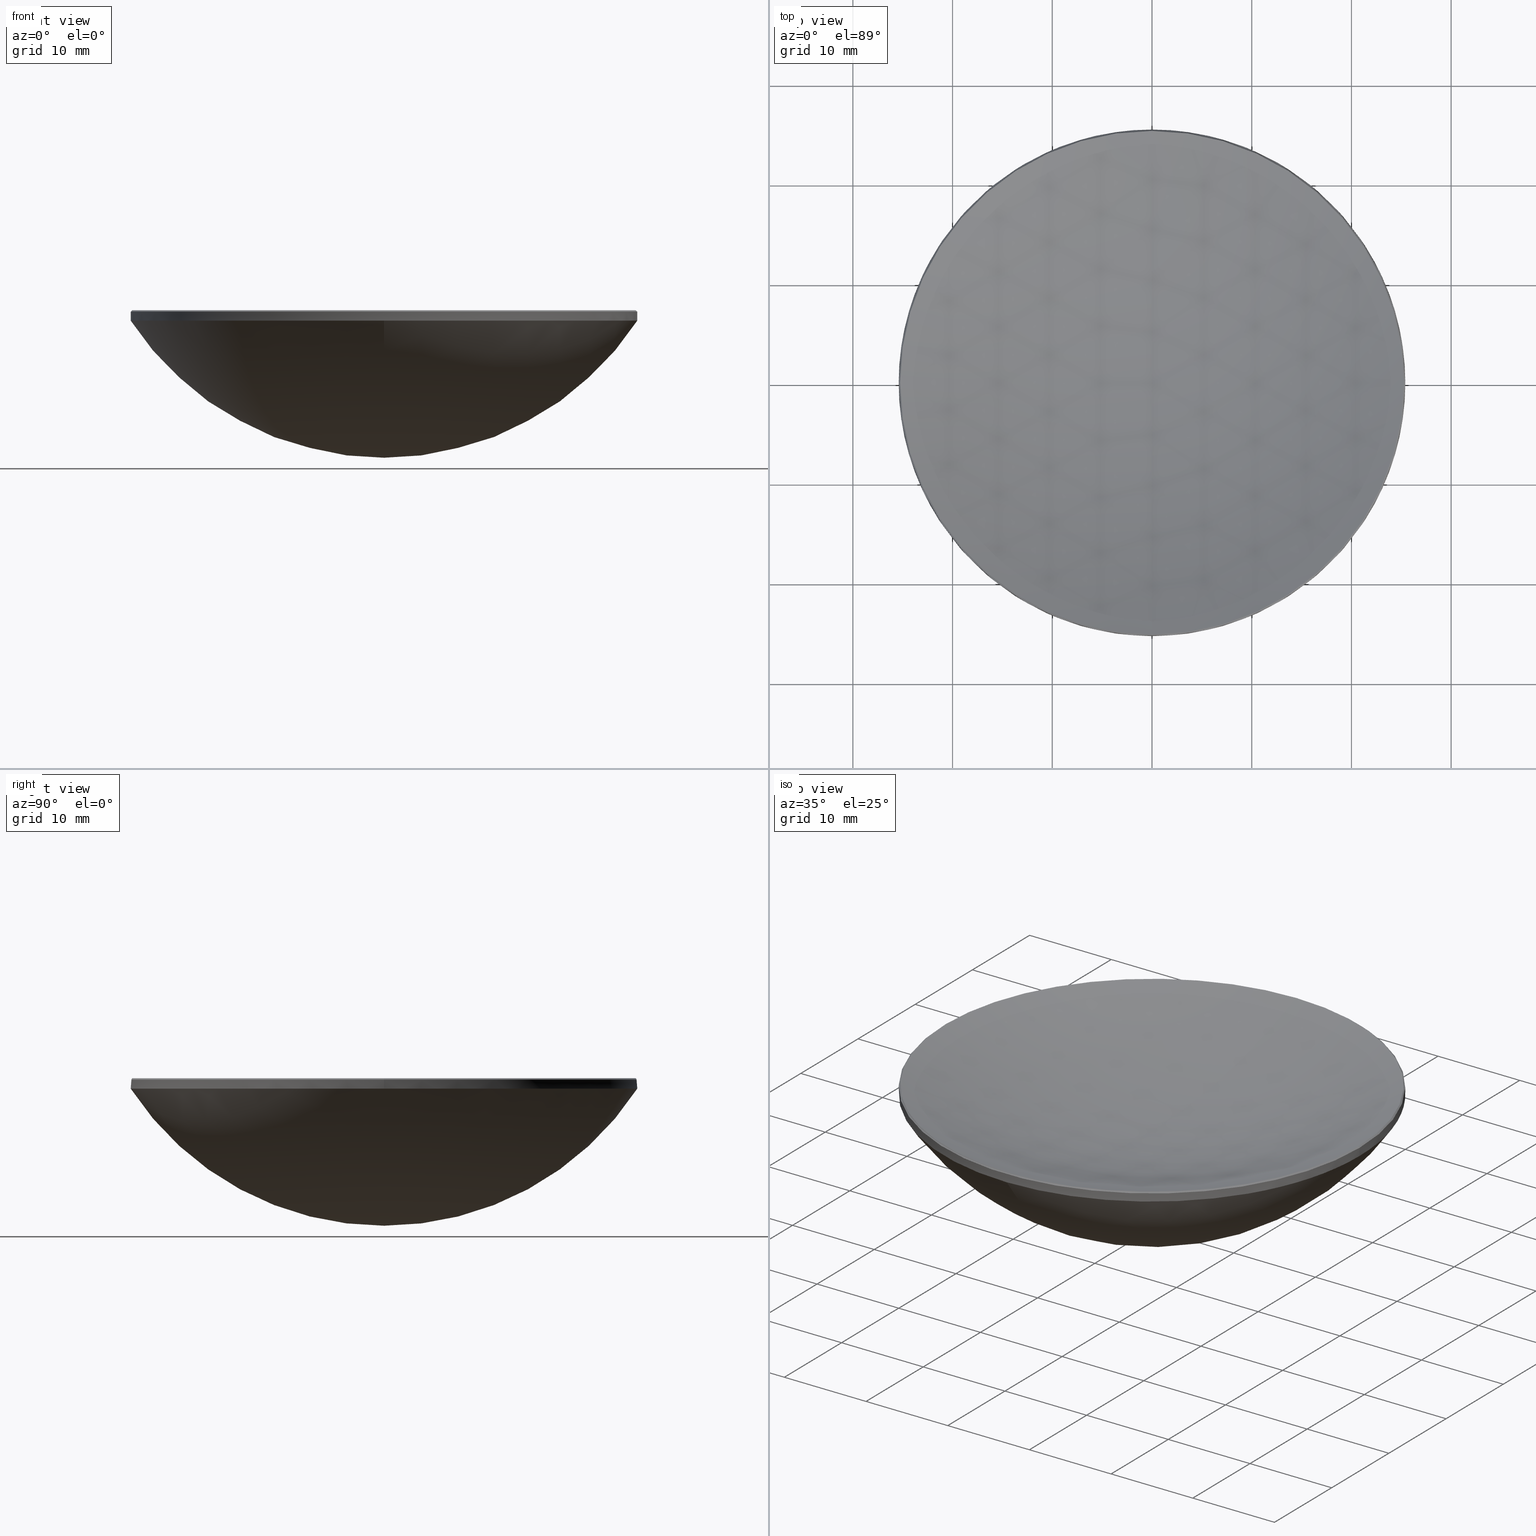
[diagram: canonical four-view strip — front | top / right | iso, engineering-drawing reading convention]
A machine part, canonical four-view strip (front | top / right | iso — engineering-drawing reading convention). The complete STEP part file that produces these views, byte-faithful:
ISO-10303-21;
HEADER;
FILE_DESCRIPTION (( 'STEP AP214' ),
    '1' );
FILE_NAME ('GLM1-050B-100-NIR.STEP',
    '2024-08-09T02:21:25',
    ( 'Windows User' ),
    ( 'P R C' ),
    'SwSTEP 2.0',
    'SolidWorks 2022',
    '' );
FILE_SCHEMA (( 'AUTOMOTIVE_DESIGN' ));
ENDSEC;

DATA;
#1 = ORIENTED_EDGE ( 'NONE', *, *, #128, .T. ) ;
#2 = LINE ( 'NONE', #49, #87 ) ;
#3 = AXIS2_PLACEMENT_3D ( 'NONE', #270, #124, #103 ) ;
#4 = DIRECTION ( 'NONE',  ( 0.000000000000000000, 0.000000000000000000, -1.000000000000000000 ) ) ;
#5 = ADVANCED_FACE ( 'NONE', ( #29 ), #241, .F. ) ;
#6 = DIRECTION ( 'NONE',  ( -1.000000000000000000, 0.000000000000000000, 0.000000000000000000 ) ) ;
#7 = ORIENTED_EDGE ( 'NONE', *, *, #107, .T. ) ;
#8 = ORIENTED_EDGE ( 'NONE', *, *, #32, .T. ) ;
#9 = DIRECTION ( 'NONE',  ( 1.000000000000000000, 0.000000000000000000, 0.000000000000000000 ) ) ;
#10 = SURFACE_STYLE_FILL_AREA ( #150 ) ;
#11 = SURFACE_STYLE_USAGE ( .BOTH. , #248 ) ;
#12 = DIRECTION ( 'NONE',  ( 1.000000000000000000, 0.000000000000000000, 0.000000000000000000 ) ) ;
#13 = ADVANCED_FACE ( 'NONE', ( #74 ), #77, .T. ) ;
#14 = DIRECTION ( 'NONE',  ( -0.000000000000000000, -0.000000000000000000, 1.000000000000000000 ) ) ;
#15 =( NAMED_UNIT ( * ) PLANE_ANGLE_UNIT ( ) SI_UNIT ( $, .RADIAN. ) );
#16 = DIRECTION ( 'NONE',  ( 1.000000000000000000, 0.000000000000000000, 0.000000000000000000 ) ) ;
#17 = PRESENTATION_STYLE_ASSIGNMENT (( #11 ) ) ;
#18 = CIRCLE ( 'NONE', #181, 25.39999999999999503 ) ;
#19 = ADVANCED_FACE ( 'NONE', ( #207 ), #240, .T. ) ;
#20 = AXIS2_PLACEMENT_3D ( 'NONE', #192, #58, #147 ) ;
#21 = VERTEX_POINT ( 'NONE', #142 ) ;
#22 = ORIENTED_EDGE ( 'NONE', *, *, #91, .F. ) ;
#23 = UNCERTAINTY_MEASURE_WITH_UNIT (LENGTH_MEASURE( 1.000000000000000082E-05 ), #170, 'distance_accuracy_value', 'NONE');
#24 = VERTEX_POINT ( 'NONE', #139 ) ;
#25 = DIRECTION ( 'NONE',  ( -0.000000000000000000, -0.000000000000000000, -1.000000000000000000 ) ) ;
#26 = FACE_OUTER_BOUND ( 'NONE', #280, .T. ) ;
#27 = CIRCLE ( 'NONE', #104, 25.39999999999999503 ) ;
#28 = COLOUR_RGB ( '',1.000000000000000000, 1.000000000000000000, 1.000000000000000000 ) ;
#29 = FACE_OUTER_BOUND ( 'NONE', #177, .T. ) ;
#30 = ORIENTED_EDGE ( 'NONE', *, *, #91, .T. ) ;
#31 = DIRECTION ( 'NONE',  ( 1.000000000000000000, 0.000000000000000000, 0.000000000000000000 ) ) ;
#32 = EDGE_CURVE ( 'NONE', #24, #68, #138, .T. ) ;
#33 = CARTESIAN_POINT ( 'NONE',  ( 25.25886542154867342, 3.093318868859334493E-15, 17.04113457845133439 ) ) ;
#34 =( LENGTH_UNIT ( ) NAMED_UNIT ( * ) SI_UNIT ( .MILLI., .METRE. ) );
#35 =( NAMED_UNIT ( * ) SI_UNIT ( $, .STERADIAN. ) SOLID_ANGLE_UNIT ( ) );
#36 = DIRECTION ( 'NONE',  ( -0.000000000000000000, -0.000000000000000000, -1.000000000000000000 ) ) ;
#37 = CARTESIAN_POINT ( 'NONE',  ( 25.25886542154865921, 3.101960869346804496E-15, 17.04113457845134860 ) ) ;
#38 = CARTESIAN_POINT ( 'NONE',  ( 0.000000000000000000, 0.000000000000000000, 17.04113457845134860 ) ) ;
#39 = MECHANICAL_DESIGN_GEOMETRIC_PRESENTATION_REPRESENTATION (  '', ( #56 ), #105 ) ;
#40 = ORIENTED_EDGE ( 'NONE', *, *, #71, .T. ) ;
#41 = EDGE_LOOP ( 'NONE', ( #110, #155, #257, #132 ) ) ;
#42 = ADVANCED_FACE ( 'NONE', ( #76 ), #75, .T. ) ;
#43 = STYLED_ITEM ( 'NONE', ( #216 ), #134 ) ;
#44 = AXIS2_PLACEMENT_3D ( 'NONE', #97, #271, #80 ) ;
#45 = ORIENTED_EDGE ( 'NONE', *, *, #261, .F. ) ;
#46 = DIRECTION ( 'NONE',  ( -0.000000000000000000, -0.000000000000000000, -1.000000000000000000 ) ) ;
#47 = EDGE_CURVE ( 'NONE', #236, #72, #2, .T. ) ;
#48 = SPHERICAL_SURFACE ( 'NONE', #254, 65.79999999999999716 ) ;
#49 = CARTESIAN_POINT ( 'NONE',  ( -25.25886542154867342, 0.000000000000000000, 17.04113457845133439 ) ) ;
#50 = CIRCLE ( 'NONE', #199, 65.79999999999999716 ) ;
#51 = APPLICATION_CONTEXT ( 'automotive_design' ) ;
#52 = CARTESIAN_POINT ( 'NONE',  ( -25.39999999999999858, 0.000000000000000000, 16.90000000000001279 ) ) ;
#53 = VERTEX_POINT ( 'NONE', #164 ) ;
#54 = DIRECTION ( 'NONE',  ( 0.000000000000000000, 0.000000000000000000, -1.000000000000000000 ) ) ;
#55 = CIRCLE ( 'NONE', #253, 25.39999999999999858 ) ;
#56 = STYLED_ITEM ( 'NONE', ( #17 ), #245 ) ;
#57 = DIRECTION ( 'NONE',  ( 0.7071067811865561215, 8.659560562355038861E-17, -0.7071067811865388020 ) ) ;
#58 = DIRECTION ( 'NONE',  ( 1.000000000000000000, -0.000000000000000000, 0.000000000000000000 ) ) ;
#59 = ADVANCED_FACE ( 'NONE', ( #26 ), #48, .F. ) ;
#60 = DIRECTION ( 'NONE',  ( 1.000000000000000000, 0.000000000000000000, 0.000000000000000000 ) ) ;
#61 = DIRECTION ( 'NONE',  ( 1.000000000000000000, 0.000000000000000000, 0.000000000000000000 ) ) ;
#62 =( NAMED_UNIT ( * ) PLANE_ANGLE_UNIT ( ) SI_UNIT ( $, .RADIAN. ) );
#63 = APPLICATION_PROTOCOL_DEFINITION ( 'draft international standard', 'automotive_design', 1998, #51 ) ;
#64 = ORIENTED_EDGE ( 'NONE', *, *, #189, .T. ) ;
#65 = CIRCLE ( 'NONE', #44, 30.33999999999999986 ) ;
#66 = ORIENTED_EDGE ( 'NONE', *, *, #47, .T. ) ;
#67 = ORIENTED_EDGE ( 'NONE', *, *, #201, .T. ) ;
#68 = VERTEX_POINT ( 'NONE', #88 ) ;
#69 = CIRCLE ( 'NONE', #221, 25.25886542154865921 ) ;
#70 = ORIENTED_EDGE ( 'NONE', *, *, #160, .T. ) ;
#71 = EDGE_CURVE ( 'NONE', #176, #264, #156, .T. ) ;
#72 = VERTEX_POINT ( 'NONE', #52 ) ;
#73 = CARTESIAN_POINT ( 'NONE',  ( 0.000000000000000000, 0.000000000000000000, 17.04113457845133439 ) ) ;
#74 = FACE_OUTER_BOUND ( 'NONE', #202, .T. ) ;
#75 = CONICAL_SURFACE ( 'NONE', #108, 25.25886542154867342, 0.7853981633974606025 ) ;
#76 = FACE_OUTER_BOUND ( 'NONE', #260, .T. ) ;
#77 = CYLINDRICAL_SURFACE ( 'NONE', #162, 25.39999999999999858 ) ;
#78 = FILL_AREA_STYLE_COLOUR ( '', #28 ) ;
#79 = PRODUCT_DEFINITION_FORMATION_WITH_SPECIFIED_SOURCE ( '�κ�', '', #127, .NOT_KNOWN. ) ;
#80 = DIRECTION ( 'NONE',  ( -1.224646799147353207E-16, -1.000000000000000000, 0.000000000000000000 ) ) ;
#81 = MECHANICAL_DESIGN_GEOMETRIC_PRESENTATION_REPRESENTATION (  '', ( #43 ), #238 ) ;
#82 = ORIENTED_EDGE ( 'NONE', *, *, #120, .F. ) ;
#83 = EDGE_LOOP ( 'NONE', ( #141, #30, #1, #70, #258 ) ) ;
#84 = PRESENTATION_LAYER_ASSIGNMENT (  '', '', ( #56 ) ) ;
#85 = ORIENTED_EDGE ( 'NONE', *, *, #115, .F. ) ;
#86 = ORIENTED_EDGE ( 'NONE', *, *, #115, .T. ) ;
#87 = VECTOR ( 'NONE', #223, 1000.000000000000114 ) ;
#88 = CARTESIAN_POINT ( 'NONE',  ( 25.39999999999999503, 3.110602869834276471E-15, 16.00000000000000000 ) ) ;
#89 = CARTESIAN_POINT ( 'NONE',  ( -25.39999999999999503, 0.000000000000000000, 16.00000000000000000 ) ) ;
#90 = DIRECTION ( 'NONE',  ( -1.000000000000000000, 0.000000000000000000, 0.000000000000000000 ) ) ;
#91 = EDGE_CURVE ( 'NONE', #24, #72, #112, .T. ) ;
#92 = DIRECTION ( 'NONE',  ( 0.000000000000000000, 1.000000000000000000, 0.000000000000000000 ) ) ;
#93 =( GEOMETRIC_REPRESENTATION_CONTEXT ( 3 ) GLOBAL_UNCERTAINTY_ASSIGNED_CONTEXT ( ( #23 ) ) GLOBAL_UNIT_ASSIGNED_CONTEXT ( ( #170, #99, #35 ) ) REPRESENTATION_CONTEXT ( 'NONE', 'WORKASPACE' ) );
#94 = VERTEX_POINT ( 'NONE', #89 ) ;
#95 = EDGE_CURVE ( 'NONE', #236, #176, #69, .T. ) ;
#96 = CARTESIAN_POINT ( 'NONE',  ( 0.000000000000000000, 0.000000000000000000, 77.79991762762121255 ) ) ;
#97 = CARTESIAN_POINT ( 'NONE',  ( 0.000000000000000000, 0.000000000000000000, 32.59384223138210501 ) ) ;
#98 = DIRECTION ( 'NONE',  ( -1.224646799147353207E-16, -1.000000000000000000, 0.000000000000000000 ) ) ;
#99 =( NAMED_UNIT ( * ) PLANE_ANGLE_UNIT ( ) SI_UNIT ( $, .RADIAN. ) );
#100 = CARTESIAN_POINT ( 'NONE',  ( 0.000000000000000000, 0.000000000000000000, 0.000000000000000000 ) ) ;
#101 = CARTESIAN_POINT ( 'NONE',  ( -25.39999999999999858, 0.000000000000000000, 20.00000000000000000 ) ) ;
#102 = UNCERTAINTY_MEASURE_WITH_UNIT (LENGTH_MEASURE( 1.000000000000000082E-05 ), #130, 'distance_accuracy_value', 'NONE');
#103 = DIRECTION ( 'NONE',  ( 0.000000000000000000, 1.000000000000000000, 0.000000000000000000 ) ) ;
#104 = AXIS2_PLACEMENT_3D ( 'NONE', #118, #186, #163 ) ;
#105 =( GEOMETRIC_REPRESENTATION_CONTEXT ( 3 ) GLOBAL_UNCERTAINTY_ASSIGNED_CONTEXT ( ( #102 ) ) GLOBAL_UNIT_ASSIGNED_CONTEXT ( ( #130, #15, #152 ) ) REPRESENTATION_CONTEXT ( 'NONE', 'WORKASPACE' ) );
#106 = ORIENTED_EDGE ( 'NONE', *, *, #95, .T. ) ;
#107 = EDGE_CURVE ( 'NONE', #21, #94, #27, .T. ) ;
#108 = AXIS2_PLACEMENT_3D ( 'NONE', #73, #4, #90 ) ;
#109 = VERTEX_POINT ( 'NONE', #210 ) ;
#110 = ORIENTED_EDGE ( 'NONE', *, *, #234, .F. ) ;
#111 = CARTESIAN_POINT ( 'NONE',  ( 0.000000000000000000, 0.000000000000000000, 77.79991762762121255 ) ) ;
#112 = CIRCLE ( 'NONE', #151, 25.39999999999999858 ) ;
#113 = ORIENTED_EDGE ( 'NONE', *, *, #189, .F. ) ;
#114 = DIRECTION ( 'NONE',  ( -0.000000000000000000, -0.000000000000000000, 1.000000000000000000 ) ) ;
#115 = EDGE_CURVE ( 'NONE', #72, #24, #55, .T. ) ;
#116 = DIRECTION ( 'NONE',  ( 1.000000000000000000, 0.000000000000000000, 0.000000000000000000 ) ) ;
#117 = AXIS2_PLACEMENT_3D ( 'NONE', #229, #217, #9 ) ;
#118 = CARTESIAN_POINT ( 'NONE',  ( 0.000000000000000000, 0.000000000000000000, 16.00000000000000000 ) ) ;
#119 = VECTOR ( 'NONE', #57, 1000.000000000000114 ) ;
#120 = EDGE_CURVE ( 'NONE', #264, #53, #144, .T. ) ;
#121 = FILL_AREA_STYLE_COLOUR ( '', #173 ) ;
#122 = DIRECTION ( 'NONE',  ( -1.000000000000000000, 0.000000000000000000, 0.000000000000000000 ) ) ;
#123 = CARTESIAN_POINT ( 'NONE',  ( 0.000000000000000000, 0.000000000000000000, 16.00000000000000000 ) ) ;
#124 = DIRECTION ( 'NONE',  ( -1.000000000000000000, 0.000000000000000000, 0.000000000000000000 ) ) ;
#125 = CARTESIAN_POINT ( 'NONE',  ( -3.110602869834276076E-15, -25.39999999999999503, 16.00000000000000000 ) ) ;
#126 = AXIS2_PLACEMENT_3D ( 'NONE', #123, #195, #12 ) ;
#127 = PRODUCT ( 'GLM1-050B-100-NIR', 'GLM1-050B-100-NIR', '', ( #279 ) ) ;
#128 = EDGE_CURVE ( 'NONE', #72, #94, #255, .T. ) ;
#129 = DIRECTION ( 'NONE',  ( 0.000000000000000000, 0.000000000000000000, -1.000000000000000000 ) ) ;
#130 =( LENGTH_UNIT ( ) NAMED_UNIT ( * ) SI_UNIT ( .MILLI., .METRE. ) );
#131 = AXIS2_PLACEMENT_3D ( 'NONE', #251, #54, #145 ) ;
#132 = ORIENTED_EDGE ( 'NONE', *, *, #107, .F. ) ;
#133 = ORIENTED_EDGE ( 'NONE', *, *, #95, .F. ) ;
#134 = MANIFOLD_SOLID_BREP ( '����1', #281 ) ;
#135 = AXIS2_PLACEMENT_3D ( 'NONE', #38, #276, #16 ) ;
#136 = ORIENTED_EDGE ( 'NONE', *, *, #227, .T. ) ;
#137 = EDGE_CURVE ( 'NONE', #53, #236, #262, .T. ) ;
#138 = LINE ( 'NONE', #143, #187 ) ;
#139 = CARTESIAN_POINT ( 'NONE',  ( 25.39999999999999858, 3.110602869834276865E-15, 16.90000000000001279 ) ) ;
#140 = PRODUCT_DEFINITION ( 'δ֪', '', #79, #198 ) ;
#141 = ORIENTED_EDGE ( 'NONE', *, *, #32, .F. ) ;
#142 = CARTESIAN_POINT ( 'NONE',  ( 0.000000000000000000, 25.39999999999999503, 16.00000000000000000 ) ) ;
#143 = CARTESIAN_POINT ( 'NONE',  ( 25.39999999999999858, 3.110602869834276865E-15, 20.00000000000000000 ) ) ;
#144 = CIRCLE ( 'NONE', #135, 25.25886542154865921 ) ;
#145 = DIRECTION ( 'NONE',  ( -1.000000000000000000, 0.000000000000000000, 0.000000000000000000 ) ) ;
#146 = AXIS2_PLACEMENT_3D ( 'NONE', #278, #122, #212 ) ;
#147 = DIRECTION ( 'NONE',  ( 0.000000000000000000, 0.000000000000000000, -1.000000000000000000 ) ) ;
#148 =( NAMED_UNIT ( * ) SI_UNIT ( $, .STERADIAN. ) SOLID_ANGLE_UNIT ( ) );
#149 = CARTESIAN_POINT ( 'NONE',  ( 0.000000000000000000, 4.029087969194792054E-15, 11.99991762762121716 ) ) ;
#150 = FILL_AREA_STYLE ('',( #121 ) ) ;
#151 = AXIS2_PLACEMENT_3D ( 'NONE', #225, #185, #206 ) ;
#152 =( NAMED_UNIT ( * ) SI_UNIT ( $, .STERADIAN. ) SOLID_ANGLE_UNIT ( ) );
#153 = CARTESIAN_POINT ( 'NONE',  ( 0.000000000000000000, 0.000000000000000000, 16.00000000000000000 ) ) ;
#154 = DIRECTION ( 'NONE',  ( 1.000000000000000000, 0.000000000000000000, 0.000000000000000000 ) ) ;
#155 = ORIENTED_EDGE ( 'NONE', *, *, #261, .T. ) ;
#156 = CIRCLE ( 'NONE', #267, 25.25886542154865921 ) ;
#157 = ORIENTED_EDGE ( 'NONE', *, *, #265, .F. ) ;
#158 = VECTOR ( 'NONE', #36, 1000.000000000000000 ) ;
#159 = CARTESIAN_POINT ( 'NONE',  ( 0.000000000000000000, 0.000000000000000000, 20.00000000000000000 ) ) ;
#160 = EDGE_CURVE ( 'NONE', #94, #237, #18, .T. ) ;
#161 = DIRECTION ( 'NONE',  ( -1.000000000000000000, 0.000000000000000000, 0.000000000000000000 ) ) ;
#162 = AXIS2_PLACEMENT_3D ( 'NONE', #159, #25, #266 ) ;
#163 = DIRECTION ( 'NONE',  ( 1.000000000000000000, 0.000000000000000000, 0.000000000000000000 ) ) ;
#164 = CARTESIAN_POINT ( 'NONE',  ( 0.000000000000000000, 25.25886542154867698, 17.04113457845135216 ) ) ;
#165 = DIRECTION ( 'NONE',  ( 1.000000000000000000, 0.000000000000000000, 0.000000000000000000 ) ) ;
#166 = CIRCLE ( 'NONE', #174, 25.39999999999999503 ) ;
#167 = DIRECTION ( 'NONE',  ( -1.000000000000000000, 1.224646799147353207E-16, 0.000000000000000000 ) ) ;
#168 = SURFACE_STYLE_FILL_AREA ( #213 ) ;
#169 = DIRECTION ( 'NONE',  ( -0.000000000000000000, -0.000000000000000000, 1.000000000000000000 ) ) ;
#170 =( LENGTH_UNIT ( ) NAMED_UNIT ( * ) SI_UNIT ( .MILLI., .METRE. ) );
#171 = CARTESIAN_POINT ( 'NONE',  ( -3.093318868859335282E-15, -25.25886542154867698, 17.04113457845135216 ) ) ;
#172 = UNCERTAINTY_MEASURE_WITH_UNIT (LENGTH_MEASURE( 1.000000000000000082E-05 ), #34, 'distance_accuracy_value', 'NONE');
#173 = COLOUR_RGB ( '',1.000000000000000000, 1.000000000000000000, 1.000000000000000000 ) ;
#174 = AXIS2_PLACEMENT_3D ( 'NONE', #273, #169, #214 ) ;
#175 = ORIENTED_EDGE ( 'NONE', *, *, #137, .T. ) ;
#176 = VERTEX_POINT ( 'NONE', #171 ) ;
#177 = EDGE_LOOP ( 'NONE', ( #190, #64, #40, #188 ) ) ;
#178 = ADVANCED_FACE ( 'NONE', ( #275 ), #191, .T. ) ;
#179 = ORIENTED_EDGE ( 'NONE', *, *, #128, .F. ) ;
#180 = ORIENTED_EDGE ( 'NONE', *, *, #265, .T. ) ;
#181 = AXIS2_PLACEMENT_3D ( 'NONE', #153, #14, #60 ) ;
#182 = CIRCLE ( 'NONE', #20, 30.33999999999999986 ) ;
#183 = CARTESIAN_POINT ( 'NONE',  ( 0.000000000000000000, 0.000000000000000000, 17.04113457845134860 ) ) ;
#184 = EDGE_CURVE ( 'NONE', #237, #68, #166, .T. ) ;
#185 = DIRECTION ( 'NONE',  ( 0.000000000000000000, 0.000000000000000000, -1.000000000000000000 ) ) ;
#186 = DIRECTION ( 'NONE',  ( -0.000000000000000000, -0.000000000000000000, 1.000000000000000000 ) ) ;
#187 = VECTOR ( 'NONE', #268, 1000.000000000000000 ) ;
#188 = ORIENTED_EDGE ( 'NONE', *, *, #120, .T. ) ;
#189 = EDGE_CURVE ( 'NONE', #256, #176, #50, .T. ) ;
#190 = ORIENTED_EDGE ( 'NONE', *, *, #201, .F. ) ;
#191 = SPHERICAL_SURFACE ( 'NONE', #3, 30.33999999999999986 ) ;
#192 = CARTESIAN_POINT ( 'NONE',  ( 0.000000000000000000, 0.000000000000000000, 32.59384223138210501 ) ) ;
#193 = ADVANCED_FACE ( 'NONE', ( #247 ), #228, .T. ) ;
#194 = SURFACE_SIDE_STYLE ('',( #10 ) ) ;
#195 = DIRECTION ( 'NONE',  ( -0.000000000000000000, -0.000000000000000000, 1.000000000000000000 ) ) ;
#196 = SHAPE_DEFINITION_REPRESENTATION ( #274, #245 ) ;
#197 = CARTESIAN_POINT ( 'NONE',  ( 0.000000000000000000, 0.000000000000000000, 16.90000000000001279 ) ) ;
#198 = PRODUCT_DEFINITION_CONTEXT ( 'detailed design', #51, 'design' ) ;
#199 = AXIS2_PLACEMENT_3D ( 'NONE', #231, #167, #98 ) ;
#200 = ORIENTED_EDGE ( 'NONE', *, *, #227, .F. ) ;
#201 = EDGE_CURVE ( 'NONE', #256, #53, #246, .T. ) ;
#202 = EDGE_LOOP ( 'NONE', ( #86, #8, #180, #7, #179 ) ) ;
#203 = PRODUCT_RELATED_PRODUCT_CATEGORY ( 'part', '', ( #127 ) ) ;
#204 = DIRECTION ( 'NONE',  ( 0.000000000000000000, 1.000000000000000000, 0.000000000000000000 ) ) ;
#205 = AXIS2_PLACEMENT_3D ( 'NONE', #100, #232, #154 ) ;
#206 = DIRECTION ( 'NONE',  ( 1.000000000000000000, 0.000000000000000000, 0.000000000000000000 ) ) ;
#207 = FACE_OUTER_BOUND ( 'NONE', #83, .T. ) ;
#208 = CARTESIAN_POINT ( 'NONE',  ( 0.000000000000000000, 0.000000000000000000, 20.00000000000000000 ) ) ;
#209 = PRESENTATION_LAYER_ASSIGNMENT (  '', '', ( #43 ) ) ;
#210 = CARTESIAN_POINT ( 'NONE',  ( 0.000000000000000000, 1.857789194306534769E-15, 2.253842231382106931 ) ) ;
#211 = SURFACE_STYLE_USAGE ( .BOTH. , #194 ) ;
#212 = DIRECTION ( 'NONE',  ( 0.000000000000000000, 1.000000000000000000, 0.000000000000000000 ) ) ;
#213 = FILL_AREA_STYLE ('',( #78 ) ) ;
#214 = DIRECTION ( 'NONE',  ( 1.000000000000000000, 0.000000000000000000, 0.000000000000000000 ) ) ;
#215 = AXIS2_PLACEMENT_3D ( 'NONE', #96, #165, #244 ) ;
#216 = PRESENTATION_STYLE_ASSIGNMENT (( #211 ) ) ;
#217 = DIRECTION ( 'NONE',  ( -0.000000000000000000, -0.000000000000000000, 1.000000000000000000 ) ) ;
#218 = AXIS2_PLACEMENT_3D ( 'NONE', #269, #6, #92 ) ;
#219 = ORIENTED_EDGE ( 'NONE', *, *, #137, .F. ) ;
#220 = ORIENTED_EDGE ( 'NONE', *, *, #234, .T. ) ;
#221 = AXIS2_PLACEMENT_3D ( 'NONE', #243, #114, #31 ) ;
#222 = ADVANCED_FACE ( 'NONE', ( #250 ), #282, .T. ) ;
#223 = DIRECTION ( 'NONE',  ( -0.7071067811865561215, 0.000000000000000000, -0.7071067811865388020 ) ) ;
#224 = DIRECTION ( 'NONE',  ( -0.000000000000000000, -0.000000000000000000, 1.000000000000000000 ) ) ;
#225 = CARTESIAN_POINT ( 'NONE',  ( 0.000000000000000000, 0.000000000000000000, 16.90000000000001279 ) ) ;
#226 = LINE ( 'NONE', #33, #119 ) ;
#227 = EDGE_CURVE ( 'NONE', #264, #24, #226, .T. ) ;
#228 = SPHERICAL_SURFACE ( 'NONE', #146, 30.33999999999999986 ) ;
#229 = CARTESIAN_POINT ( 'NONE',  ( 0.000000000000000000, 0.000000000000000000, 17.04113457845134860 ) ) ;
#230 = CARTESIAN_POINT ( 'NONE',  ( -25.25886542154865921, 0.000000000000000000, 17.04113457845134860 ) ) ;
#231 = CARTESIAN_POINT ( 'NONE',  ( 0.000000000000000000, 0.000000000000000000, 77.79991762762121255 ) ) ;
#232 = DIRECTION ( 'NONE',  ( 0.000000000000000000, 0.000000000000000000, 1.000000000000000000 ) ) ;
#233 = ORIENTED_EDGE ( 'NONE', *, *, #184, .F. ) ;
#234 = EDGE_CURVE ( 'NONE', #109, #21, #182, .T. ) ;
#235 = ORIENTED_EDGE ( 'NONE', *, *, #71, .F. ) ;
#236 = VERTEX_POINT ( 'NONE', #230 ) ;
#237 = VERTEX_POINT ( 'NONE', #125 ) ;
#238 =( GEOMETRIC_REPRESENTATION_CONTEXT ( 3 ) GLOBAL_UNCERTAINTY_ASSIGNED_CONTEXT ( ( #172 ) ) GLOBAL_UNIT_ASSIGNED_CONTEXT ( ( #34, #62, #148 ) ) REPRESENTATION_CONTEXT ( 'NONE', 'WORKASPACE' ) );
#239 = DIRECTION ( 'NONE',  ( -1.000000000000000000, 0.000000000000000000, 0.000000000000000000 ) ) ;
#240 = CYLINDRICAL_SURFACE ( 'NONE', #277, 25.39999999999999858 ) ;
#241 = SPHERICAL_SURFACE ( 'NONE', #218, 65.79999999999999716 ) ;
#242 = EDGE_LOOP ( 'NONE', ( #82, #136, #85, #259, #219 ) ) ;
#243 = CARTESIAN_POINT ( 'NONE',  ( 0.000000000000000000, 0.000000000000000000, 17.04113457845134860 ) ) ;
#244 = DIRECTION ( 'NONE',  ( 0.000000000000000000, 0.000000000000000000, -1.000000000000000000 ) ) ;
#245 = ADVANCED_BREP_SHAPE_REPRESENTATION ( 'GLM1-050B-100-NIR', ( #134, #205 ), #93 ) ;
#246 = CIRCLE ( 'NONE', #215, 65.79999999999999716 ) ;
#247 = FACE_OUTER_BOUND ( 'NONE', #263, .T. ) ;
#248 = SURFACE_SIDE_STYLE ('',( #168 ) ) ;
#249 = APPLICATION_CONTEXT ( 'automotive_design' ) ;
#250 = FACE_OUTER_BOUND ( 'NONE', #242, .T. ) ;
#251 = CARTESIAN_POINT ( 'NONE',  ( 0.000000000000000000, 0.000000000000000000, 17.04113457845133439 ) ) ;
#252 = APPLICATION_PROTOCOL_DEFINITION ( 'draft international standard', 'automotive_design', 1998, #249 ) ;
#253 = AXIS2_PLACEMENT_3D ( 'NONE', #197, #129, #61 ) ;
#254 = AXIS2_PLACEMENT_3D ( 'NONE', #111, #161, #204 ) ;
#255 = LINE ( 'NONE', #101, #158 ) ;
#256 = VERTEX_POINT ( 'NONE', #149 ) ;
#257 = ORIENTED_EDGE ( 'NONE', *, *, #160, .F. ) ;
#258 = ORIENTED_EDGE ( 'NONE', *, *, #184, .T. ) ;
#259 = ORIENTED_EDGE ( 'NONE', *, *, #47, .F. ) ;
#260 = EDGE_LOOP ( 'NONE', ( #200, #235, #133, #66, #22 ) ) ;
#261 = EDGE_CURVE ( 'NONE', #109, #237, #65, .T. ) ;
#262 = CIRCLE ( 'NONE', #117, 25.25886542154865921 ) ;
#263 = EDGE_LOOP ( 'NONE', ( #45, #220, #157, #233 ) ) ;
#264 = VERTEX_POINT ( 'NONE', #37 ) ;
#265 = EDGE_CURVE ( 'NONE', #68, #21, #272, .T. ) ;
#266 = DIRECTION ( 'NONE',  ( -1.000000000000000000, 0.000000000000000000, 0.000000000000000000 ) ) ;
#267 = AXIS2_PLACEMENT_3D ( 'NONE', #183, #224, #116 ) ;
#268 = DIRECTION ( 'NONE',  ( -0.000000000000000000, -0.000000000000000000, -1.000000000000000000 ) ) ;
#269 = CARTESIAN_POINT ( 'NONE',  ( 0.000000000000000000, 0.000000000000000000, 77.79991762762121255 ) ) ;
#270 = CARTESIAN_POINT ( 'NONE',  ( 0.000000000000000000, 0.000000000000000000, 32.59384223138210501 ) ) ;
#271 = DIRECTION ( 'NONE',  ( -1.000000000000000000, 1.224646799147353207E-16, 0.000000000000000000 ) ) ;
#272 = CIRCLE ( 'NONE', #126, 25.39999999999999503 ) ;
#273 = CARTESIAN_POINT ( 'NONE',  ( 0.000000000000000000, 0.000000000000000000, 16.00000000000000000 ) ) ;
#274 = PRODUCT_DEFINITION_SHAPE ( 'NONE', 'NONE',  #140 ) ;
#275 = FACE_OUTER_BOUND ( 'NONE', #41, .T. ) ;
#276 = DIRECTION ( 'NONE',  ( -0.000000000000000000, -0.000000000000000000, 1.000000000000000000 ) ) ;
#277 = AXIS2_PLACEMENT_3D ( 'NONE', #208, #46, #239 ) ;
#278 = CARTESIAN_POINT ( 'NONE',  ( 0.000000000000000000, 0.000000000000000000, 32.59384223138210501 ) ) ;
#279 = PRODUCT_CONTEXT ( 'NONE', #249, 'mechanical' ) ;
#280 = EDGE_LOOP ( 'NONE', ( #113, #67, #175, #106 ) ) ;
#281 = CLOSED_SHELL ( 'NONE', ( #222, #178, #5, #13, #19, #59, #193, #42 ) ) ;
#282 = CONICAL_SURFACE ( 'NONE', #131, 25.25886542154867342, 0.7853981633974606025 ) ;
ENDSEC;
END-ISO-10303-21;
